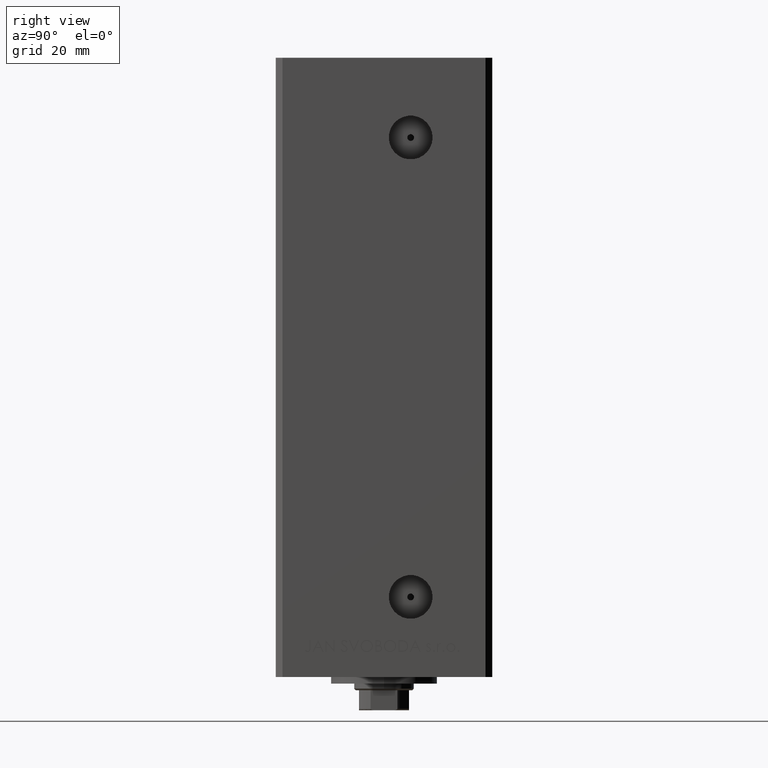
[diagram: clean part render]
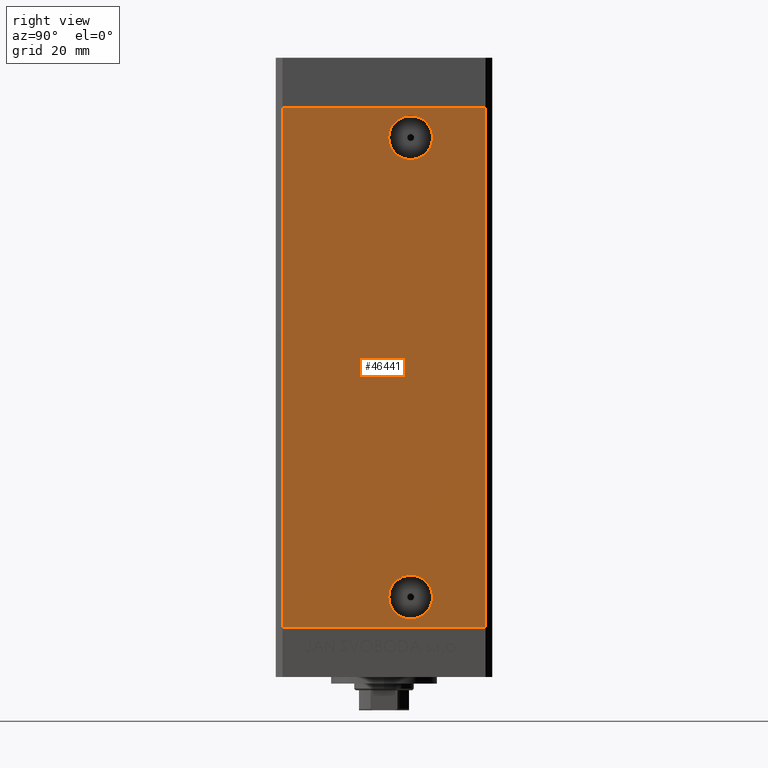
[diagram: same view with one face highlighted and labeled with its STEP entity id]
A machine part, right view. The second image highlights one B-rep face of the part: STEP entity #46441.
In plain terms, the highlighted planar face has unit normal (1, -0, 0).
Its self-contained STEP definition (entity closure, byte-faithful):
#880 = CIRCLE ( 'NONE', #36692, 6.580000000000006288 ) ;
#1112 = ORIENTED_EDGE ( 'NONE', *, *, #16229, .F. ) ;
#1994 = ORIENTED_EDGE ( 'NONE', *, *, #40176, .F. ) ;
#2960 = EDGE_LOOP ( 'NONE', ( #27939, #35993 ) ) ;
#3273 = CARTESIAN_POINT ( 'NONE',  ( 37.50000000000000000, 7.999999999999991118, 147.0000000000000000 ) ) ;
#3995 = ORIENTED_EDGE ( 'NONE', *, *, #7713, .T. ) ;
#5356 = CARTESIAN_POINT ( 'NONE',  ( 37.49999999999999289, -30.50000000000000000, 0.000000000000000000 ) ) ;
#6339 = CARTESIAN_POINT ( 'NONE',  ( 37.50000000000000000, 1.419999999999975948, 147.0000000000000000 ) ) ;
#7713 = EDGE_CURVE ( 'NONE', #14656, #33504, #29270, .T. ) ;
#7804 = VECTOR ( 'NONE', #35020, 1000.000000000000000 ) ;
#8011 = CARTESIAN_POINT ( 'NONE',  ( 37.50000000000000711, 30.50000000000000000, 0.000000000000000000 ) ) ;
#8307 = CIRCLE ( 'NONE', #32195, 6.580000000000014282 ) ;
#8438 = VERTEX_POINT ( 'NONE', #32405 ) ;
#9961 = FACE_OUTER_BOUND ( 'NONE', #39123, .T. ) ;
#10675 = EDGE_CURVE ( 'NONE', #36122, #14656, #11063, .T. ) ;
#11063 = LINE ( 'NONE', #44956, #48641 ) ;
#12174 = EDGE_CURVE ( 'NONE', #40805, #8438, #880, .T. ) ;
#13196 = ORIENTED_EDGE ( 'NONE', *, *, #10675, .T. ) ;
#14070 = CARTESIAN_POINT ( 'NONE',  ( 37.49999999999999289, -30.50000000000000000, 156.0000000000000000 ) ) ;
#14656 = VERTEX_POINT ( 'NONE', #39834 ) ;
#14674 = FACE_BOUND ( 'NONE', #26670, .T. ) ;
#14980 = DIRECTION ( 'NONE',  ( 1.000000000000000000, -2.275047181608927644E-16, 0.000000000000000000 ) ) ;
#16229 = EDGE_CURVE ( 'NONE', #8438, #40805, #20086, .T. ) ;
#17326 = DIRECTION ( 'NONE',  ( -0.000000000000000000, -0.000000000000000000, -1.000000000000000000 ) ) ;
#17778 = ORIENTED_EDGE ( 'NONE', *, *, #18689, .F. ) ;
#18689 = EDGE_CURVE ( 'NONE', #36122, #46177, #46461, .T. ) ;
#18833 = VERTEX_POINT ( 'NONE', #49141 ) ;
#19585 = CARTESIAN_POINT ( 'NONE',  ( 37.50000000000000711, 30.50000000000000000, 0.000000000000000000 ) ) ;
#20086 = CIRCLE ( 'NONE', #47918, 6.580000000000006288 ) ;
#21568 = CARTESIAN_POINT ( 'NONE',  ( 37.50000000000000000, 7.999999999999991118, 147.0000000000000000 ) ) ;
#21844 = EDGE_CURVE ( 'NONE', #18833, #26109, #8307, .T. ) ;
#21906 = DIRECTION ( 'NONE',  ( 1.000000000000000000, -2.275047181608927644E-16, 0.000000000000000000 ) ) ;
#22234 = AXIS2_PLACEMENT_3D ( 'NONE', #29870, #21906, #29148 ) ;
#23541 = CARTESIAN_POINT ( 'NONE',  ( 37.50000000000000711, 30.50000000000000000, 156.0000000000000000 ) ) ;
#26109 = VERTEX_POINT ( 'NONE', #6339 ) ;
#26303 = VECTOR ( 'NONE', #17326, 1000.000000000000000 ) ;
#26664 = DIRECTION ( 'NONE',  ( 1.000000000000000000, -2.275047181608927644E-16, 0.000000000000000000 ) ) ;
#26670 = EDGE_LOOP ( 'NONE', ( #1112, #34399 ) ) ;
#27562 = LINE ( 'NONE', #19585, #7804 ) ;
#27939 = ORIENTED_EDGE ( 'NONE', *, *, #21844, .F. ) ;
#29148 = DIRECTION ( 'NONE',  ( 2.275047181608927644E-16, 1.000000000000000000, 0.000000000000000000 ) ) ;
#29270 = LINE ( 'NONE', #14070, #26303 ) ;
#29389 = FACE_BOUND ( 'NONE', #2960, .T. ) ;
#29870 = CARTESIAN_POINT ( 'NONE',  ( 37.50000000000000711, 30.50000000000000000, 156.0000000000000000 ) ) ;
#30140 = CARTESIAN_POINT ( 'NONE',  ( 37.50000000000000711, 30.50000000000000000, 156.0000000000000000 ) ) ;
#30499 = VECTOR ( 'NONE', #46948, 1000.000000000000000 ) ;
#31140 = CARTESIAN_POINT ( 'NONE',  ( 37.50000000000000000, 7.999999999999991118, 8.999999999999994671 ) ) ;
#31151 = EDGE_CURVE ( 'NONE', #26109, #18833, #31390, .T. ) ;
#31375 = DIRECTION ( 'NONE',  ( 1.000000000000000000, -2.275047181608927644E-16, 0.000000000000000000 ) ) ;
#31390 = CIRCLE ( 'NONE', #36162, 6.580000000000014282 ) ;
#32195 = AXIS2_PLACEMENT_3D ( 'NONE', #3273, #14980, #33161 ) ;
#32405 = CARTESIAN_POINT ( 'NONE',  ( 37.50000000000000000, 14.57999999999999829, 8.999999999999994671 ) ) ;
#33161 = DIRECTION ( 'NONE',  ( 0.000000000000000000, 1.000000000000000000, 0.000000000000000000 ) ) ;
#33504 = VERTEX_POINT ( 'NONE', #5356 ) ;
#34399 = ORIENTED_EDGE ( 'NONE', *, *, #12174, .F. ) ;
#34628 = DIRECTION ( 'NONE',  ( 0.000000000000000000, 1.000000000000000000, 0.000000000000000000 ) ) ;
#35020 = DIRECTION ( 'NONE',  ( -2.275047181608927644E-16, -1.000000000000000000, 0.000000000000000000 ) ) ;
#35993 = ORIENTED_EDGE ( 'NONE', *, *, #31151, .F. ) ;
#36122 = VERTEX_POINT ( 'NONE', #30140 ) ;
#36162 = AXIS2_PLACEMENT_3D ( 'NONE', #21568, #43516, #36766 ) ;
#36692 = AXIS2_PLACEMENT_3D ( 'NONE', #47256, #26664, #41854 ) ;
#36766 = DIRECTION ( 'NONE',  ( 0.000000000000000000, 1.000000000000000000, 0.000000000000000000 ) ) ;
#39123 = EDGE_LOOP ( 'NONE', ( #1994, #17778, #13196, #3995 ) ) ;
#39834 = CARTESIAN_POINT ( 'NONE',  ( 37.49999999999999289, -30.50000000000000000, 156.0000000000000000 ) ) ;
#40176 = EDGE_CURVE ( 'NONE', #46177, #33504, #27562, .T. ) ;
#40362 = PLANE ( 'NONE',  #22234 ) ;
#40805 = VERTEX_POINT ( 'NONE', #46618 ) ;
#41854 = DIRECTION ( 'NONE',  ( 0.000000000000000000, 1.000000000000000000, 0.000000000000000000 ) ) ;
#43516 = DIRECTION ( 'NONE',  ( 1.000000000000000000, -2.275047181608927644E-16, 0.000000000000000000 ) ) ;
#44956 = CARTESIAN_POINT ( 'NONE',  ( 37.50000000000000711, 30.50000000000000000, 156.0000000000000000 ) ) ;
#46177 = VERTEX_POINT ( 'NONE', #8011 ) ;
#46441 = ADVANCED_FACE ( 'NONE', ( #14674, #29389, #9961 ), #40362, .T. ) ;
#46461 = LINE ( 'NONE', #23541, #30499 ) ;
#46618 = CARTESIAN_POINT ( 'NONE',  ( 37.50000000000000000, 1.419999999999985496, 8.999999999999994671 ) ) ;
#46948 = DIRECTION ( 'NONE',  ( -0.000000000000000000, -0.000000000000000000, -1.000000000000000000 ) ) ;
#47256 = CARTESIAN_POINT ( 'NONE',  ( 37.50000000000000000, 7.999999999999991118, 8.999999999999994671 ) ) ;
#47918 = AXIS2_PLACEMENT_3D ( 'NONE', #31140, #31375, #34628 ) ;
#48448 = DIRECTION ( 'NONE',  ( -2.275047181608927644E-16, -1.000000000000000000, 0.000000000000000000 ) ) ;
#48641 = VECTOR ( 'NONE', #48448, 1000.000000000000000 ) ;
#49141 = CARTESIAN_POINT ( 'NONE',  ( 37.50000000000000000, 14.58000000000000540, 147.0000000000000000 ) ) ;